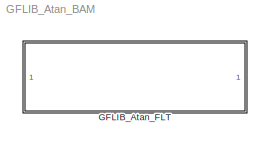
MODEL GFLIB_Atan_BAM
KIND model
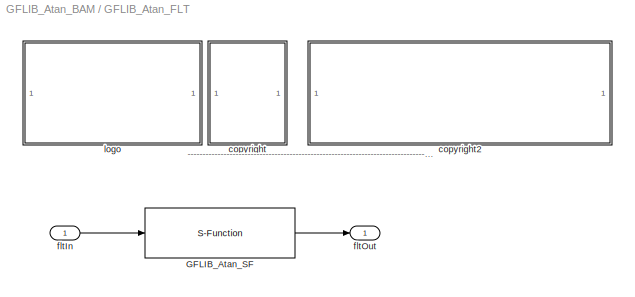
BLOCK [SubSystem] GFLIB_Atan_FLT
  FunctionWithSeparateData = off
  MaskDescription = Bit accurate model of GFLIB_Atan function, which computes the arctan(fltIn) function.
  MaskDisplay = color('black');port_label('input',1,'fltIn');port_label('output',1,'fltOut');color('black');disp('GFLIB_Atan_FLT');color('blue');text(tX,tY, 'BAM', 'horizontalAlignment', 'center');
  MaskHideContents = off
  MaskIconFrame = on
  MaskIconOpaque = on
  MaskIconRotate = none
  MaskIconUnits = pixels
  MaskInitialization = pos = get_param(gcb, 'Position');width = pos(3) - pos(1); height = pos(4) - pos(2);tX=width/2;tY=height*0.9;
  MaskPortRotate = default
  MaskType = GFLIB_Atan_FLT
  MinAlgLoopOccurrences = off
  Opaque = off
  Ports = [1, 1]
  PropExecContextOutsideSubsystem = off
  RTWSystemCode = Auto
  RequestExecContextInheritance = off
BLOCK [S-Function] GFLIB_Atan_FLT/GFLIB_Atan_SF
  EnableBusSupport = off
  FunctionName = GFLIB_Atan_SF_FLT
  Ports = [1, 1]
BLOCK [SubSystem] GFLIB_Atan_FLT/<copyright redacted>
  FunctionWithSeparateData = off
  MaskDisplay = text(10,90,'FILE:');text(10,75,'DESRIPTION:')text(10,60,'<copyright redacted>
  MaskHideContents = off
  MaskIconFrame = off
  MaskIconOpaque = on
  MaskIconRotate = none
  MaskIconUnits = pixels
  MaskPortRotate = default
  MinAlgLoopOccurrences = off
  Opaque = off
  Ports = []
  PropExecContextOutsideSubsystem = off
  RTWSystemCode = Auto
  RequestExecContextInheritance = off
BLOCK [SubSystem] GFLIB_Atan_FLT/copyright2
  FunctionWithSeparateData = off
  MaskDisplay = text(10,90,'GFLIB_Atan_BAM_FLT.mdl');text(10,75,'Inverse tangent transformation');text(10,60,'Freescale')text(10,45,'0.1');text(10,30,'01-Sep-2011');
  MaskHideContents = off
  MaskIconFrame = off
  MaskIconOpaque = on
  MaskIconRotate = none
  MaskIconUnits = pixels
  MaskPortRotate = default
  MinAlgLoopOccurrences = off
  Opaque = off
  Ports = []
  PropExecContextOutsideSubsystem = off
  RTWSystemCode = Auto
  RequestExecContextInheritance = off
BLOCK [Inport] GFLIB_Atan_FLT/fltIn
  IconDisplay = Port number
  OutDataType = fixdt(1, 16)
  OutScaling = 2^0
BLOCK [Outport] GFLIB_Atan_FLT/fltOut
  IconDisplay = Port number
  OutDataType = fixdt(1, 16)
  OutScaling = 2^0
BLOCK [SubSystem] GFLIB_Atan_FLT/logo
  FunctionWithSeparateData = off
  MaskDisplay = image(imread('logo.jpg'))
  MaskHideContents = off
  MaskIconFrame = off
  MaskIconOpaque = on
  MaskIconRotate = none
  MaskIconUnits = autoscale
  MaskPortRotate = default
  MinAlgLoopOccurrences = off
  Opaque = off
  Ports = []
  PropExecContextOutsideSubsystem = off
  RTWSystemCode = Auto
  RequestExecContextInheritance = off
ANNOTATION GFLIB_Atan_FLT: ---------------------------------------------------------------------------------------------------------------------------------------------------------------------------------------------------
LINE GFLIB_Atan_FLT/GFLIB_Atan_SF:1 -> GFLIB_Atan_FLT/fltOut:1
LINE GFLIB_Atan_FLT/fltIn:1 -> GFLIB_Atan_FLT/GFLIB_Atan_SF:1
